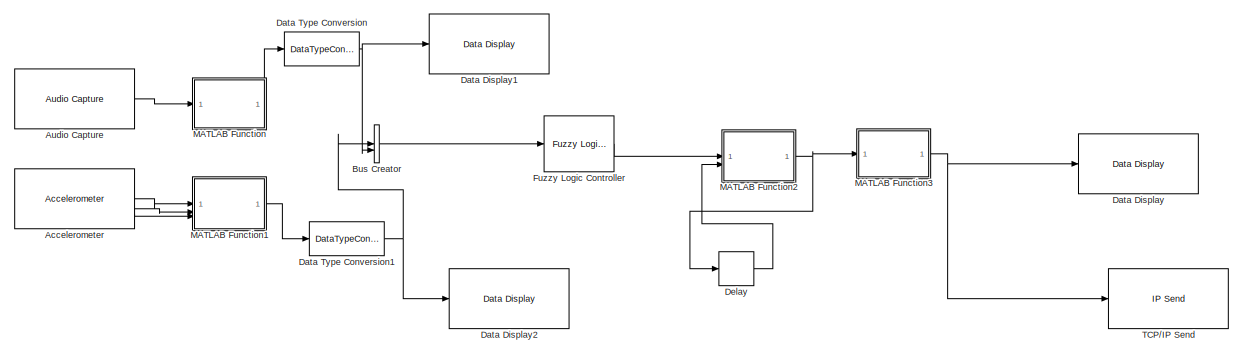
[diagram: root canvas - part 1/3, top center region]
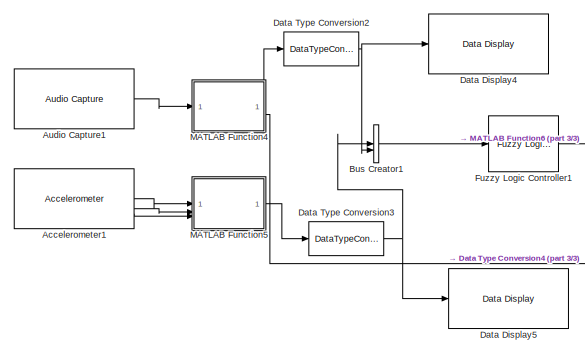
[diagram: root canvas - part 2/3, middle left region]
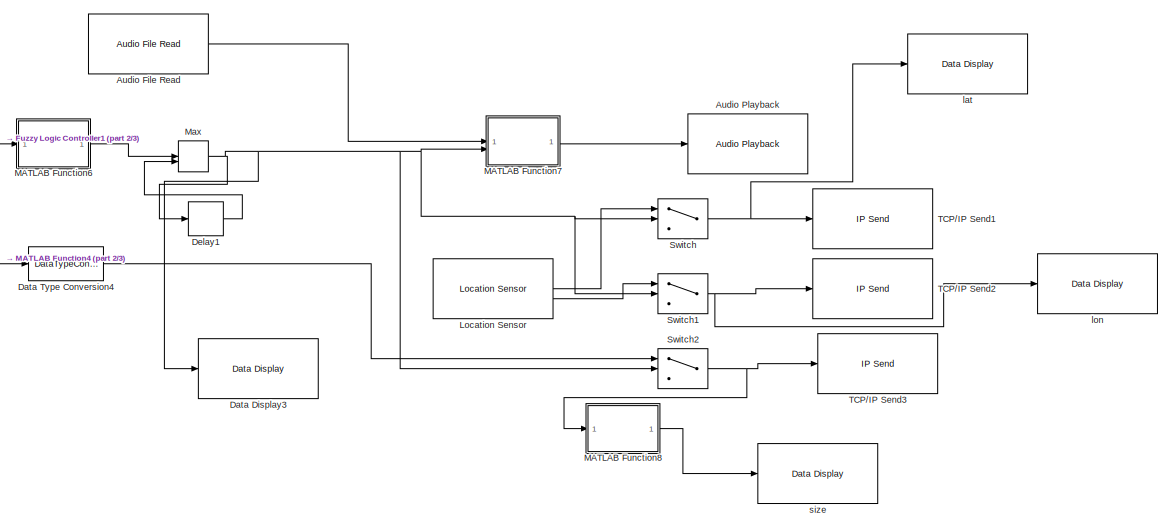
[diagram: root canvas - part 3/3, bottom center region]
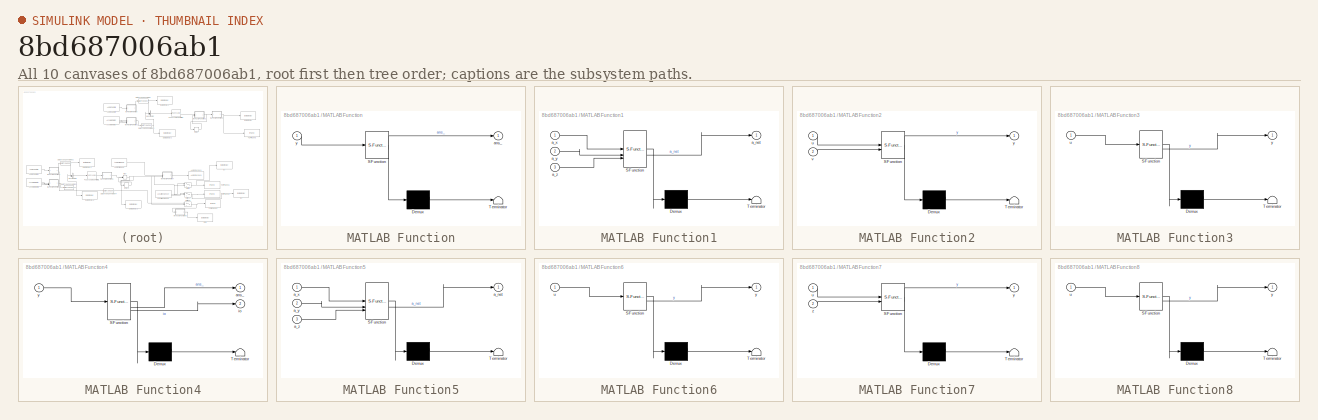
[diagram: thumbnail index - all 10 canvases of the model, root first then tree order]
MODEL slx_8bd687006ab1
KIND model
CONFIG AbsTol = auto
CONFIG EnableMultiTasking = off
CONFIG FixedStep = auto
CONFIG MaxStep = auto
CONFIG MinStep = auto
CONFIG RelTol = 1e-3
CONFIG SampleTimeConstraint = Unconstrained
CONFIG SolverName = FixedStepAuto
CONFIG StartTime = 0.0
CONFIG StopTime = inf
BLOCK [Reference] Accelerometer  REF=androidsensorlib/Accelerometer
  Commented = on
  SourceBlock = androidsensorlib/Accelerometer
  SourceType = codertarget.internal.androidAccelerometer
BLOCK [Reference] Accelerometer1  REF=androidsensorlib/Accelerometer
  SourceBlock = androidsensorlib/Accelerometer
  SourceType = codertarget.internal.androidAccelerometer
BLOCK [Reference] Audio Capture  REF=androidaudiovideolib/Audio Capture
  Commented = on
  SourceBlock = androidaudiovideolib/Audio Capture
  SourceType = codertarget.internal.androidAudioCapture
BLOCK [Reference] Audio Capture1  REF=androidaudiovideolib/Audio Capture
  SourceBlock = androidaudiovideolib/Audio Capture
  SourceType = codertarget.internal.androidAudioCapture
BLOCK [Reference] Audio File Read  REF=androidaudiovideolib/Audio File Read
  SourceBlock = androidaudiovideolib/Audio File Read
  SourceType = codertarget.internal.androidAudioFileRead
BLOCK [Reference] Audio Playback  REF=androidaudiovideolib/Audio Playback
  SourceBlock = androidaudiovideolib/Audio Playback
  SourceType = codertarget.internal.androidAudioPlayback
BLOCK [BusCreator] Bus Creator
  Commented = on
  DisplayOption = bar
  InheritFromInputs = on
  Inputs = 2
BLOCK [BusCreator] Bus Creator1
  DisplayOption = bar
  InheritFromInputs = on
  Inputs = 2
BLOCK [Reference] Data Display  REF=androiduilib/Data Display
  Commented = on
  SourceBlock = androiduilib/Data Display
  SourceType = codertarget.internal.androidDataDisplay
BLOCK [Reference] Data Display1  REF=androiduilib/Data Display
  Commented = on
  SourceBlock = androiduilib/Data Display
  SourceType = codertarget.internal.androidDataDisplay
BLOCK [Reference] Data Display2  REF=androiduilib/Data Display
  Commented = on
  SourceBlock = androiduilib/Data Display
  SourceType = codertarget.internal.androidDataDisplay
BLOCK [Reference] Data Display3  REF=androiduilib/Data Display
  SourceBlock = androiduilib/Data Display
  SourceType = codertarget.internal.androidDataDisplay
BLOCK [Reference] Data Display4  REF=androiduilib/Data Display
  SourceBlock = androiduilib/Data Display
  SourceType = codertarget.internal.androidDataDisplay
BLOCK [Reference] Data Display5  REF=androiduilib/Data Display
  SourceBlock = androiduilib/Data Display
  SourceType = codertarget.internal.androidDataDisplay
BLOCK [DataTypeConversion] Data Type Conversion
  Commented = on
  RndMeth = Floor
  SaturateOnIntegerOverflow = off
BLOCK [DataTypeConversion] Data Type Conversion1
  Commented = on
  RndMeth = Floor
  SaturateOnIntegerOverflow = off
BLOCK [DataTypeConversion] Data Type Conversion2
  RndMeth = Floor
  SaturateOnIntegerOverflow = off
BLOCK [DataTypeConversion] Data Type Conversion3
  RndMeth = Floor
  SaturateOnIntegerOverflow = off
BLOCK [DataTypeConversion] Data Type Conversion4
  OutDataTypeStr = double
  RndMeth = Floor
  SaturateOnIntegerOverflow = off
BLOCK [Delay] Delay
  Commented = on
  DelayLength = 1
  InitialCondition = 0
  InputPortMap = u0
BLOCK [Delay] Delay1
  DelayLength = 1
  InitialCondition = 0
  InputPortMap = u0
BLOCK [Reference] Fuzzy Logic Controller  REF=fuzblock/Fuzzy Logic   (lib defined in mdl_858b3b3e7478)
Controller
  Commented = on
  SourceBlock = fuzblock/Fuzzy Logic \nController
  SourceType = Fuzzy Inference System
BLOCK [Reference] Fuzzy Logic Controller1  REF=fuzblock/Fuzzy Logic   (lib defined in mdl_858b3b3e7478)
Controller
  SourceBlock = fuzblock/Fuzzy Logic \nController
  SourceType = Fuzzy Inference System
BLOCK [Reference] Location Sensor  REF=androidsensorlib/Location Sensor
  SourceBlock = androidsensorlib/Location Sensor
  SourceType = codertarget.internal.androidLocation
BLOCK [SubSystem] MATLAB Function
  Commented = on
  ErrorFcn = Stateflow.Translate.translate
  LibrarySourceBlock = simulink/User-Defined\nFunctions/MATLAB Function
  PermitHierarchicalResolution = ExplicitOnly
  SFBlockType = MATLAB Function
  TreatAsAtomicUnit = on
BLOCK [Demux] MATLAB Function/ Demux 
  Outputs = 1
BLOCK [S-Function] MATLAB Function/ SFunction 
  EnableBusSupport = on
  FunctionName = sf_sfun
  PortCounts = [1 2]
  SFcnIsStateOwnerBlock = off
  SFunctionDeploymentMode = off
  Tag = Stateflow S-Function 2
BLOCK [Terminator] MATLAB Function/ Terminator 
BLOCK [Outport] MATLAB Function/ans_
BLOCK [Inport] MATLAB Function/y
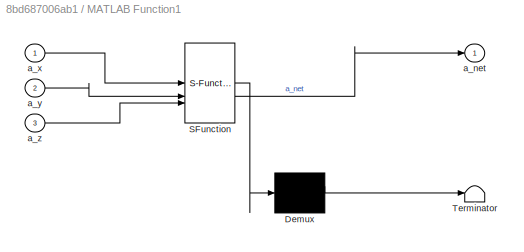
BLOCK [SubSystem] MATLAB Function1
  Commented = on
  ErrorFcn = Stateflow.Translate.translate
  LibrarySourceBlock = simulink/User-Defined\nFunctions/MATLAB Function
  PermitHierarchicalResolution = ExplicitOnly
  SFBlockType = MATLAB Function
  TreatAsAtomicUnit = on
BLOCK [Demux] MATLAB Function1/ Demux 
  Outputs = 1
BLOCK [S-Function] MATLAB Function1/ SFunction 
  EnableBusSupport = on
  FunctionName = sf_sfun
  PortCounts = [3 2]
  SFcnIsStateOwnerBlock = off
  SFunctionDeploymentMode = off
  Tag = Stateflow S-Function 1
BLOCK [Terminator] MATLAB Function1/ Terminator 
BLOCK [Outport] MATLAB Function1/a_net
BLOCK [Inport] MATLAB Function1/a_x
BLOCK [Inport] MATLAB Function1/a_y
  Port = 2
BLOCK [Inport] MATLAB Function1/a_z
  Port = 3
BLOCK [SubSystem] MATLAB Function2
  Commented = on
  ErrorFcn = Stateflow.Translate.translate
  LibrarySourceBlock = simulink/User-Defined\nFunctions/MATLAB Function
  PermitHierarchicalResolution = ExplicitOnly
  SFBlockType = MATLAB Function
  TreatAsAtomicUnit = on
BLOCK [Demux] MATLAB Function2/ Demux 
  Outputs = 1
BLOCK [S-Function] MATLAB Function2/ SFunction 
  EnableBusSupport = on
  FunctionName = sf_sfun
  PortCounts = [2 2]
  SFcnIsStateOwnerBlock = off
  SFunctionDeploymentMode = off
  Tag = Stateflow S-Function 3
BLOCK [Terminator] MATLAB Function2/ Terminator 
BLOCK [Inport] MATLAB Function2/u
BLOCK [Inport] MATLAB Function2/v
  Port = 2
BLOCK [Outport] MATLAB Function2/y
BLOCK [SubSystem] MATLAB Function3
  Commented = on
  ErrorFcn = Stateflow.Translate.translate
  LibrarySourceBlock = simulink/User-Defined\nFunctions/MATLAB Function
  PermitHierarchicalResolution = ExplicitOnly
  SFBlockType = MATLAB Function
  TreatAsAtomicUnit = on
BLOCK [Demux] MATLAB Function3/ Demux 
  Outputs = 1
BLOCK [S-Function] MATLAB Function3/ SFunction 
  EnableBusSupport = on
  FunctionName = sf_sfun
  PortCounts = [1 2]
  SFcnIsStateOwnerBlock = off
  SFunctionDeploymentMode = off
  Tag = Stateflow S-Function 4
BLOCK [Terminator] MATLAB Function3/ Terminator 
BLOCK [Inport] MATLAB Function3/u
BLOCK [Outport] MATLAB Function3/y
BLOCK [SubSystem] MATLAB Function4
  ErrorFcn = Stateflow.Translate.translate
  LibrarySourceBlock = simulink/User-Defined\nFunctions/MATLAB Function
  PermitHierarchicalResolution = ExplicitOnly
  SFBlockType = MATLAB Function
  TreatAsAtomicUnit = on
BLOCK [Demux] MATLAB Function4/ Demux 
  Outputs = 1
BLOCK [S-Function] MATLAB Function4/ SFunction 
  EnableBusSupport = on
  FunctionName = sf_sfun
  PortCounts = [1 3]
  SFcnIsStateOwnerBlock = off
  SFunctionDeploymentMode = off
  Tag = Stateflow S-Function 5
BLOCK [Terminator] MATLAB Function4/ Terminator 
BLOCK [Outport] MATLAB Function4/ans_
BLOCK [Outport] MATLAB Function4/io
  Port = 2
BLOCK [Inport] MATLAB Function4/y
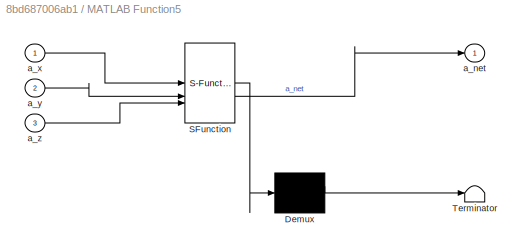
BLOCK [SubSystem] MATLAB Function5
  ErrorFcn = Stateflow.Translate.translate
  LibrarySourceBlock = simulink/User-Defined\nFunctions/MATLAB Function
  PermitHierarchicalResolution = ExplicitOnly
  SFBlockType = MATLAB Function
  TreatAsAtomicUnit = on
BLOCK [Demux] MATLAB Function5/ Demux 
  Outputs = 1
BLOCK [S-Function] MATLAB Function5/ SFunction 
  EnableBusSupport = on
  FunctionName = sf_sfun
  PortCounts = [3 2]
  SFcnIsStateOwnerBlock = off
  SFunctionDeploymentMode = off
  Tag = Stateflow S-Function 6
BLOCK [Terminator] MATLAB Function5/ Terminator 
BLOCK [Outport] MATLAB Function5/a_net
BLOCK [Inport] MATLAB Function5/a_x
BLOCK [Inport] MATLAB Function5/a_y
  Port = 2
BLOCK [Inport] MATLAB Function5/a_z
  Port = 3
BLOCK [SubSystem] MATLAB Function6
  ErrorFcn = Stateflow.Translate.translate
  LibrarySourceBlock = simulink/User-Defined\nFunctions/MATLAB Function
  PermitHierarchicalResolution = ExplicitOnly
  SFBlockType = MATLAB Function
  TreatAsAtomicUnit = on
BLOCK [Demux] MATLAB Function6/ Demux 
  Outputs = 1
BLOCK [S-Function] MATLAB Function6/ SFunction 
  EnableBusSupport = on
  FunctionName = sf_sfun
  PortCounts = [1 2]
  SFcnIsStateOwnerBlock = off
  SFunctionDeploymentMode = off
  Tag = Stateflow S-Function 7
BLOCK [Terminator] MATLAB Function6/ Terminator 
BLOCK [Inport] MATLAB Function6/u
BLOCK [Outport] MATLAB Function6/y
BLOCK [SubSystem] MATLAB Function7
  ErrorFcn = Stateflow.Translate.translate
  LibrarySourceBlock = simulink/User-Defined\nFunctions/MATLAB Function
  PermitHierarchicalResolution = ExplicitOnly
  SFBlockType = MATLAB Function
  TreatAsAtomicUnit = on
BLOCK [Demux] MATLAB Function7/ Demux 
  Outputs = 1
BLOCK [S-Function] MATLAB Function7/ SFunction 
  EnableBusSupport = on
  FunctionName = sf_sfun
  PortCounts = [2 2]
  SFcnIsStateOwnerBlock = off
  SFunctionDeploymentMode = off
  Tag = Stateflow S-Function 8
BLOCK [Terminator] MATLAB Function7/ Terminator 
BLOCK [Inport] MATLAB Function7/u
BLOCK [Outport] MATLAB Function7/y
BLOCK [Inport] MATLAB Function7/z
  Port = 2
BLOCK [SubSystem] MATLAB Function8
  ErrorFcn = Stateflow.Translate.translate
  LibrarySourceBlock = simulink/User-Defined\nFunctions/MATLAB Function
  PermitHierarchicalResolution = ExplicitOnly
  SFBlockType = MATLAB Function
  TreatAsAtomicUnit = on
BLOCK [Demux] MATLAB Function8/ Demux 
  Outputs = 1
BLOCK [S-Function] MATLAB Function8/ SFunction 
  EnableBusSupport = on
  FunctionName = sf_sfun
  PortCounts = [1 2]
  SFcnIsStateOwnerBlock = off
  SFunctionDeploymentMode = off
  Tag = Stateflow S-Function 9
BLOCK [Terminator] MATLAB Function8/ Terminator 
BLOCK [Inport] MATLAB Function8/u
BLOCK [Outport] MATLAB Function8/y
BLOCK [MinMax] Max
  Function = max
  Inputs = 2
BLOCK [Switch] Switch
  Criteria = u2 > Threshold
  InputSameDT = off
  SaturateOnIntegerOverflow = off
  Threshold = 1.5
BLOCK [Switch] Switch1
  Criteria = u2 > Threshold
  InputSameDT = off
  SaturateOnIntegerOverflow = off
  Threshold = 1.5
BLOCK [Switch] Switch2
  Criteria = u2 > Threshold
  InputSameDT = off
  SaturateOnIntegerOverflow = off
  Threshold = 1.5
BLOCK [Reference] TCP//IP Send  REF=androidcommunicationlib/TCP//IP Send
  Commented = on
  SourceBlock = androidcommunicationlib/TCP//IP Send
  SourceType = codertarget.internal.androidTCPSend
BLOCK [Reference] TCP//IP Send1  REF=androidcommunicationlib/TCP//IP Send
  SourceBlock = androidcommunicationlib/TCP//IP Send
  SourceType = codertarget.internal.androidTCPSend
BLOCK [Reference] TCP//IP Send2  REF=androidcommunicationlib/TCP//IP Send
  SourceBlock = androidcommunicationlib/TCP//IP Send
  SourceType = codertarget.internal.androidTCPSend
BLOCK [Reference] TCP//IP Send3  REF=androidcommunicationlib/TCP//IP Send
  SourceBlock = androidcommunicationlib/TCP//IP Send
  SourceType = codertarget.internal.androidTCPSend
BLOCK [Reference] lat  REF=androiduilib/Data Display
  SourceBlock = androiduilib/Data Display
  SourceType = codertarget.internal.androidDataDisplay
BLOCK [Reference] lon  REF=androiduilib/Data Display
  SourceBlock = androiduilib/Data Display
  SourceType = codertarget.internal.androidDataDisplay
BLOCK [Reference] size  REF=androiduilib/Data Display
  SourceBlock = androiduilib/Data Display
  SourceType = codertarget.internal.androidDataDisplay
LINE Accelerometer1:1 -> MATLAB Function5:1
LINE Accelerometer1:2 -> MATLAB Function5:2
LINE Accelerometer1:3 -> MATLAB Function5:3
LINE Accelerometer:1 -> MATLAB Function1:1
LINE Accelerometer:2 -> MATLAB Function1:2
LINE Accelerometer:3 -> MATLAB Function1:3
LINE Audio Capture1:1 -> MATLAB Function4:1
LINE Audio Capture:1 -> MATLAB Function:1
LINE Audio File Read:1 -> MATLAB Function7:1
LINE Bus Creator1:1 -> Fuzzy Logic Controller1:1
LINE Bus Creator:1 -> Fuzzy Logic Controller:1
NET Data Type Conversion1:1 -> Bus Creator:1, Data Display2:1
NET Data Type Conversion2:1 -> Bus Creator1:2, Data Display4:1
NET Data Type Conversion3:1 -> Bus Creator1:1, Data Display5:1
LINE Data Type Conversion4:1 -> Switch2:1
NET Data Type Conversion:1 -> Bus Creator:2, Data Display1:1
LINE Delay1:1 -> Max:2
LINE Delay:1 -> MATLAB Function2:2
LINE Fuzzy Logic Controller1:1 -> MATLAB Function6:1
LINE Fuzzy Logic Controller:1 -> MATLAB Function2:1
LINE Location Sensor:1 -> Switch:1
LINE Location Sensor:2 -> Switch1:1
LINE MATLAB Function1:1 -> Data Type Conversion1:1
NET MATLAB Function2:1 -> Delay:1, MATLAB Function3:1
NET MATLAB Function3:1 -> Data Display:1, TCP//IP Send:1
LINE MATLAB Function4:1 -> Data Type Conversion2:1
LINE MATLAB Function4:2 -> Data Type Conversion4:1
LINE MATLAB Function5:1 -> Data Type Conversion3:1
LINE MATLAB Function6:1 -> Max:1
LINE MATLAB Function7:1 -> Audio Playback:1
LINE MATLAB Function8:1 -> size:1
LINE MATLAB Function:1 -> Data Type Conversion:1
NET Max:1 -> Data Display3:1, Delay1:1, MATLAB Function7:2, Switch1:2, Switch2:2, Switch:2
NET Switch1:1 -> TCP//IP Send2:1, lon:1
NET Switch2:1 -> MATLAB Function8:1, TCP//IP Send3:1
NET Switch:1 -> TCP//IP Send1:1, lat:1
note: NET lines group one-source signal fan-out (src -> all destinations, sorted); 1:1 wires keep LINE
CHART MATLAB Function1 states=1 transitions=1
  STATE_LABEL 'eML_blk_kernel()'
  STATE_LABEL 'SCRIPT:\nfunction a_net = fcn(a_x,a_y,a_z)\n\na_net = (a_x ^ 2 + a_y ^ 2 + a_z ^ 2) ^ 0.5 ;\n    \n\n'
CHART MATLAB Function states=1 transitions=1
  STATE_LABEL 'eML_blk_kernel()'
  STATE_LABEL 'SCRIPT:\nfunction ans_ = fcn(y)\n    \nleft_channel = max(y(:, 1));\nright_channel = max(y(:, 2));\n\n% if max(left_channel,right_channel) > 28000 \n%     ans_ = 20 ;\n% elseif max(left_channel,right_channel) > 15000 \n%     ans_ = 10 ;\n% else \n%     ans_ = 0 ;\n\nans_ = max(left_channel,right_channel);\nend \n'
CHART MATLAB Function2 states=1 transitions=1
  STATE_LABEL 'eML_blk_kernel()'
  STATE_LABEL 'SCRIPT:\nfunction y = fcn(u,v)\n\nz = max(u,v);\nif (z > 0.5) \n    y = z ;\nelse \n    y = u ;\nend \n% \n% function y = fcn(v)\n% persistent flag;\n% \n%     if isempty(flag)\n%         flag = 0;\n%     end\n%     if v > 0.70\n%         flag = 2;\n%         y = 2;\n%     elseif v > 0.35\n%         flag = 1;\n%         y = 1;\n%     else\n%         flag = 0;\n%         y = 0;\n%     end\n% end'
CHART MATLAB Function3 states=1 transitions=1
  STATE_LABEL 'eML_blk_kernel()'
  STATE_LABEL 'SCRIPT:\nfunction y = fcn(u)\n    if u <= 0.35 \n        y = 0 ; \n    elseif u <= 0.7 \n        y = 1 ; \n    else\n        y = 2 ; \n    end \n\n'
CHART MATLAB Function4 states=1 transitions=1
  STATE_LABEL 'eML_blk_kernel()'
  STATE_LABEL 'SCRIPT:\nfunction [ans_,io] = fcn(y)\n    \nans_ = max(y(:, 1));\nio = y(:, 1) ;\n%right_channel = max(y(:, 2));\n\n% if max(left_channel,right_channel) > 28000 \n%     ans_ = 20 ;\n% elseif max(left_channel,right_channel) > 15000 \n%     ans_ = 10 ;\n% else \n%     ans_ = 0 ;\n\n%ans_ = max(left_channel,right_channel);\nend \n'
CHART MATLAB Function5 states=1 transitions=1
  STATE_LABEL 'eML_blk_kernel()'
  STATE_LABEL 'SCRIPT:\nfunction a_net = fcn(a_x,a_y,a_z)\n\na_net = (a_x ^ 2 + a_y ^ 2 + a_z ^ 2) ^ 0.5 ;\n    \n\n'
CHART MATLAB Function6 states=1 transitions=1
  STATE_LABEL 'eML_blk_kernel()'
  STATE_LABEL 'SCRIPT:\nfunction y = fcn(u)\n\nif (u > 0.7)\n    y = 2 ; \nelseif (u > 0.35)\n    y = 1 ; \nelse \n    y = 0 ; \nend \n\n'
CHART MATLAB Function7 states=1 transitions=1
  STATE_LABEL 'eML_blk_kernel()'
  STATE_LABEL "SCRIPT:\nfunction y = fcn(u,z)\n    if z == 1\n        % Convert u to int16 before concatenation\n        \n        y = u; \n    elseif z == 2\n        % Convert the first 31542 elements of v to int16\n        u = u * 200000 ;\n        \n        y = u;         \n    else \n        % Return a 2-channel array of zeros based on u\n        y = zeros(size(u, 1), 2, 'int16');\n    end\nend"
CHART MATLAB Function8 states=1 transitions=1
  STATE_LABEL 'eML_blk_kernel()'
  STATE_LABEL 'SCRIPT:\nfunction y = fcn(u)\n\ny = size(u);\n'
CHART  states=0 transitions=0
CHART  states=0 transitions=0
CHART  states=0 transitions=0
CHART  states=0 transitions=0
CHART  states=0 transitions=0
CHART  states=0 transitions=0
CHART  states=0 transitions=0
CHART  states=0 transitions=0
CHART  states=0 transitions=0
